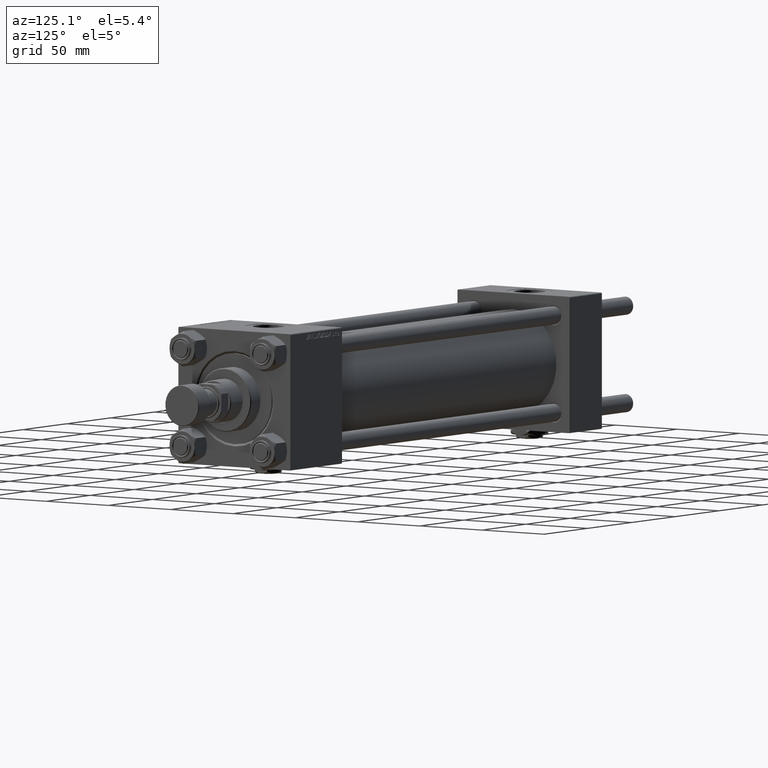
[diagram: clean part render]
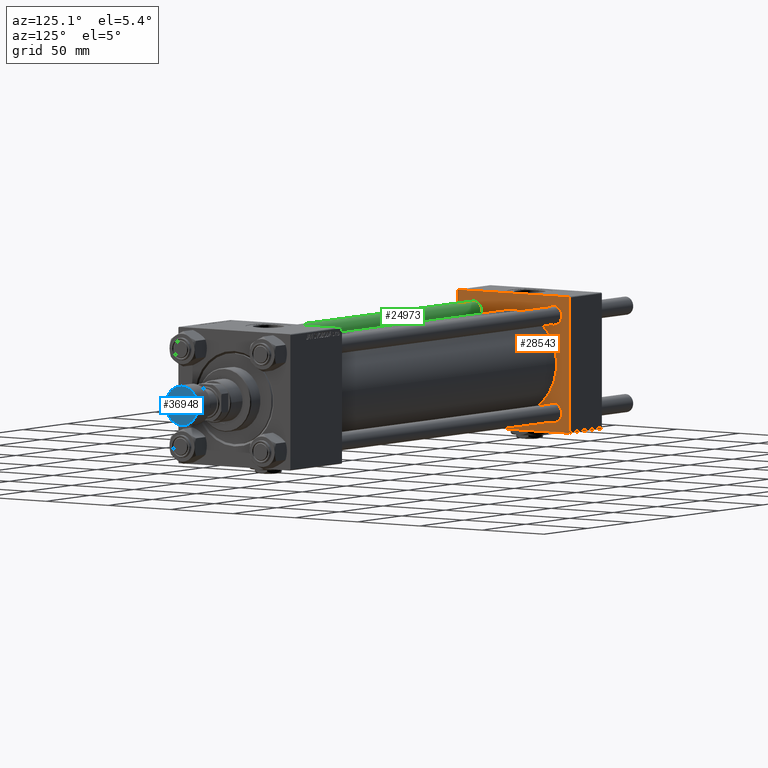
[diagram: same view with three faces highlighted in distinct colors, each labeled with its STEP entity id]
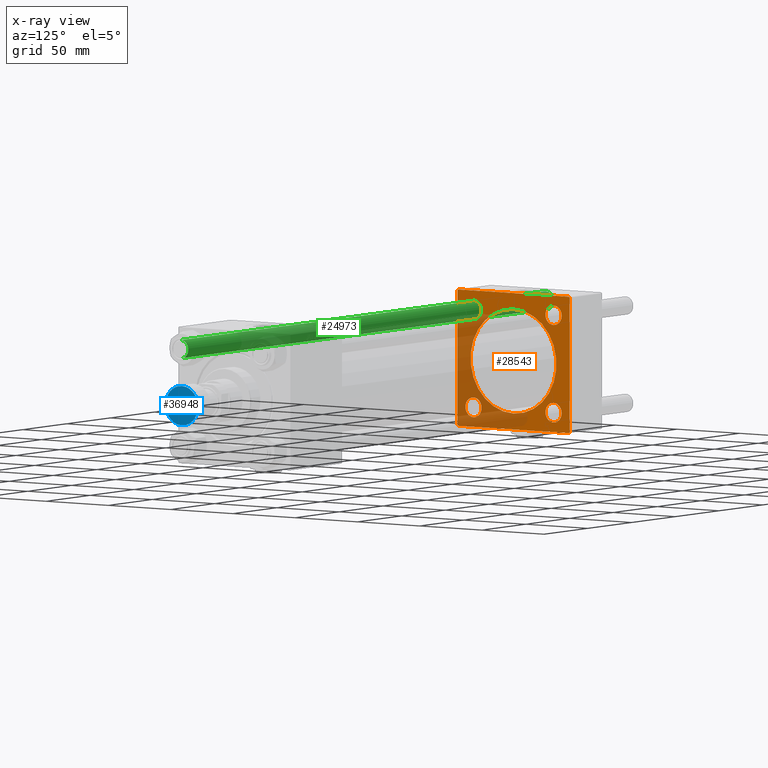
[diagram: x-ray of the same camera — body ghosted, the three highlighted faces saturated]
A machine part, auxiliary view with three faces highlighted in distinct colors.
The next image is the same camera in x-ray (body ghosted, the three faces saturated) — at least one of them is partly hidden behind the body in this view.
Their STEP definitions:

[orange] entity #28543 — the highlighted planar face has unit normal (-1, 0, 0).
#491 = DIRECTION ( 'NONE',  ( -1.000000000000000000, 0.000000000000000000, -0.000000000000000000 ) ) ;
#596 = VECTOR ( 'NONE', #25896, 1000.000000000000114 ) ;
#1404 = CARTESIAN_POINT ( 'NONE',  ( 37.00000000000000000, -45.00000000000000711, 44.49999999999997158 ) ) ;
#1483 = CARTESIAN_POINT ( 'NONE',  ( 37.00000000000000000, 32.14999999999999147, -25.65000000000005542 ) ) ;
#1545 = CARTESIAN_POINT ( 'NONE',  ( 37.00000000000000000, 32.14999999999999147, 38.64999999999995595 ) ) ;
#1889 = DIRECTION ( 'NONE',  ( -1.000000000000000000, 0.000000000000000000, -0.000000000000000000 ) ) ;
#1951 = VECTOR ( 'NONE', #28713, 1000.000000000000000 ) ;
#2550 = VERTEX_POINT ( 'NONE', #1545 ) ;
#3356 = EDGE_CURVE ( 'NONE', #46774, #48983, #51695, .T. ) ;
#3437 = AXIS2_PLACEMENT_3D ( 'NONE', #50021, #33618, #5835 ) ;
#3472 = DIRECTION ( 'NONE',  ( -1.000000000000000000, 0.000000000000000000, -0.000000000000000000 ) ) ;
#3744 = CARTESIAN_POINT ( 'NONE',  ( 37.00000000000000000, 44.99999999999998579, 45.00000000000001421 ) ) ;
#3995 = ORIENTED_EDGE ( 'NONE', *, *, #32920, .T. ) ;
#4193 = CARTESIAN_POINT ( 'NONE',  ( 37.00000000000000000, -32.14999999999997726, 32.15000000000001279 ) ) ;
#4603 = CIRCLE ( 'NONE', #39246, 6.499999999999950262 ) ;
#4772 = CARTESIAN_POINT ( 'NONE',  ( 36.99999999999997868, 0.000000000000000000, 0.000000000000000000 ) ) ;
#5323 = CIRCLE ( 'NONE', #7026, 6.499999999999950262 ) ;
#5688 = EDGE_CURVE ( 'NONE', #2550, #17032, #30655, .T. ) ;
#5790 = FACE_BOUND ( 'NONE', #16876, .T. ) ;
#5803 = EDGE_CURVE ( 'NONE', #40304, #42828, #5323, .T. ) ;
#5835 = DIRECTION ( 'NONE',  ( 0.000000000000000000, 0.000000000000000000, 1.000000000000000000 ) ) ;
#6051 = FACE_BOUND ( 'NONE', #24080, .T. ) ;
#6283 = ORIENTED_EDGE ( 'NONE', *, *, #46850, .T. ) ;
#6681 = CARTESIAN_POINT ( 'NONE',  ( 37.00000000000000000, -44.49999999999995737, -45.00000000000000000 ) ) ;
#6689 = CARTESIAN_POINT ( 'NONE',  ( 36.99999999999997868, 4.225031457058367344E-15, -34.49999999999999289 ) ) ;
#6837 = CARTESIAN_POINT ( 'NONE',  ( 36.99999999999997868, 0.000000000000000000, 34.49999999999999289 ) ) ;
#6917 = DIRECTION ( 'NONE',  ( 0.000000000000000000, 0.000000000000000000, 1.000000000000000000 ) ) ;
#7026 = AXIS2_PLACEMENT_3D ( 'NONE', #4193, #491, #28509 ) ;
#7093 = DIRECTION ( 'NONE',  ( 0.000000000000000000, 0.000000000000000000, 1.000000000000000000 ) ) ;
#7585 = CARTESIAN_POINT ( 'NONE',  ( 37.00000000000000000, 44.49999999999998579, 45.00000000000001421 ) ) ;
#7643 = CIRCLE ( 'NONE', #37223, 6.499999999999950262 ) ;
#7700 = VERTEX_POINT ( 'NONE', #1483 ) ;
#7859 = VECTOR ( 'NONE', #31920, 1000.000000000000114 ) ;
#8024 = CARTESIAN_POINT ( 'NONE',  ( 37.00000000000000000, 32.14999999999999147, 32.15000000000000568 ) ) ;
#8473 = DIRECTION ( 'NONE',  ( 1.000000000000000000, -0.000000000000000000, 0.000000000000000000 ) ) ;
#8658 = EDGE_CURVE ( 'NONE', #49926, #28106, #43831, .T. ) ;
#9208 = CARTESIAN_POINT ( 'NONE',  ( 37.00000000000000000, 44.49999999999998579, -44.99999999999998579 ) ) ;
#9772 = CARTESIAN_POINT ( 'NONE',  ( 37.00000000000000000, -44.49999999999998579, -45.00000000000000000 ) ) ;
#10048 = ORIENTED_EDGE ( 'NONE', *, *, #38626, .T. ) ;
#10142 = AXIS2_PLACEMENT_3D ( 'NONE', #4772, #8473, #16405 ) ;
#10172 = VECTOR ( 'NONE', #11133, 1000.000000000000114 ) ;
#10276 = LINE ( 'NONE', #47302, #29466 ) ;
#10550 = DIRECTION ( 'NONE',  ( 0.000000000000000000, 0.000000000000000000, 1.000000000000000000 ) ) ;
#10801 = FACE_BOUND ( 'NONE', #30455, .T. ) ;
#10857 = CARTESIAN_POINT ( 'NONE',  ( 37.00000000000000000, -32.14999999999997726, 32.15000000000001279 ) ) ;
#10979 = CARTESIAN_POINT ( 'NONE',  ( 37.00000000000000000, 32.14999999999999147, 25.65000000000005542 ) ) ;
#11119 = EDGE_CURVE ( 'NONE', #24620, #28545, #17204, .T. ) ;
#11133 = DIRECTION ( 'NONE',  ( -0.000000000000000000, -0.7071067811865425767, -0.7071067811865524577 ) ) ;
#11435 = VERTEX_POINT ( 'NONE', #12599 ) ;
#12599 = CARTESIAN_POINT ( 'NONE',  ( 37.00000000000000000, 32.14999999999999147, -38.64999999999995595 ) ) ;
#12900 = AXIS2_PLACEMENT_3D ( 'NONE', #42842, #26945, #15049 ) ;
#13198 = EDGE_CURVE ( 'NONE', #48983, #46774, #13885, .T. ) ;
#13325 = EDGE_CURVE ( 'NONE', #17032, #2550, #4603, .T. ) ;
#13885 = CIRCLE ( 'NONE', #46851, 6.499999999999950262 ) ;
#14263 = CARTESIAN_POINT ( 'NONE',  ( 37.00000000000000000, -32.14999999999997726, 25.65000000000006253 ) ) ;
#14771 = FACE_OUTER_BOUND ( 'NONE', #27775, .T. ) ;
#15049 = DIRECTION ( 'NONE',  ( 0.000000000000000000, 0.000000000000000000, 1.000000000000000000 ) ) ;
#15755 = CARTESIAN_POINT ( 'NONE',  ( 37.00000000000000000, -44.49999999999995737, 45.00000000000000000 ) ) ;
#16026 = AXIS2_PLACEMENT_3D ( 'NONE', #10857, #1889, #30441 ) ;
#16094 = ORIENTED_EDGE ( 'NONE', *, *, #44871, .F. ) ;
#16405 = DIRECTION ( 'NONE',  ( 0.000000000000000000, 0.000000000000000000, 1.000000000000000000 ) ) ;
#16876 = EDGE_LOOP ( 'NONE', ( #22390, #49203 ) ) ;
#17032 = VERTEX_POINT ( 'NONE', #10979 ) ;
#17070 = CARTESIAN_POINT ( 'NONE',  ( 37.00000000000000000, 44.99999999999998579, -44.99999999999998579 ) ) ;
#17121 = ORIENTED_EDGE ( 'NONE', *, *, #26921, .T. ) ;
#17204 = CIRCLE ( 'NONE', #34961, 34.49999999999999289 ) ;
#17568 = ORIENTED_EDGE ( 'NONE', *, *, #43378, .T. ) ;
#19856 = VERTEX_POINT ( 'NONE', #7585 ) ;
#19858 = DIRECTION ( 'NONE',  ( 0.000000000000000000, 0.000000000000000000, -1.000000000000000000 ) ) ;
#20196 = CARTESIAN_POINT ( 'NONE',  ( 37.00000000000000000, -32.14999999999997726, -38.64999999999996305 ) ) ;
#20303 = CARTESIAN_POINT ( 'NONE',  ( 37.00000000000000000, 44.99999999999998579, -44.49999999999995737 ) ) ;
#20397 = CARTESIAN_POINT ( 'NONE',  ( 36.99999999999997868, 0.000000000000000000, 0.000000000000000000 ) ) ;
#21174 = VERTEX_POINT ( 'NONE', #6681 ) ;
#21869 = CARTESIAN_POINT ( 'NONE',  ( 37.00000000000000000, -45.00000000000000000, -44.49999999999995737 ) ) ;
#22121 = VECTOR ( 'NONE', #24152, 1000.000000000000114 ) ;
#22173 = PLANE ( 'NONE',  #39535 ) ;
#22390 = ORIENTED_EDGE ( 'NONE', *, *, #3356, .T. ) ;
#22983 = ORIENTED_EDGE ( 'NONE', *, *, #45515, .F. ) ;
#23602 = CIRCLE ( 'NONE', #16026, 6.499999999999950262 ) ;
#23913 = DIRECTION ( 'NONE',  ( 0.000000000000000000, -1.000000000000000000, -1.541976423090495387E-16 ) ) ;
#24076 = CARTESIAN_POINT ( 'NONE',  ( 37.00000000000000000, -45.00000000000000711, 44.49999999999997158 ) ) ;
#24080 = EDGE_LOOP ( 'NONE', ( #29376, #32470 ) ) ;
#24152 = DIRECTION ( 'NONE',  ( 0.000000000000000000, -0.7071067811865474617, 0.7071067811865474617 ) ) ;
#24620 = VERTEX_POINT ( 'NONE', #6689 ) ;
#25608 = VECTOR ( 'NONE', #19858, 1000.000000000000000 ) ;
#25737 = ORIENTED_EDGE ( 'NONE', *, *, #34660, .F. ) ;
#25896 = DIRECTION ( 'NONE',  ( 0.000000000000000000, 0.7071067811865474617, -0.7071067811865474617 ) ) ;
#26510 = VERTEX_POINT ( 'NONE', #15755 ) ;
#26674 = CARTESIAN_POINT ( 'NONE',  ( 37.00000000000000000, 32.14999999999999147, -32.15000000000000568 ) ) ;
#26921 = EDGE_CURVE ( 'NONE', #39779, #21174, #46016, .T. ) ;
#26945 = DIRECTION ( 'NONE',  ( -1.000000000000000000, 0.000000000000000000, -0.000000000000000000 ) ) ;
#27187 = CARTESIAN_POINT ( 'NONE',  ( 37.00000000000000000, -32.14999999999997726, -32.15000000000001279 ) ) ;
#27522 = CARTESIAN_POINT ( 'NONE',  ( 37.00000000000000000, 44.99999999999998579, 44.50000000000001421 ) ) ;
#27775 = EDGE_LOOP ( 'NONE', ( #22983, #40421, #16094, #17568, #6283, #39021, #39261, #17121 ) ) ;
#27939 = CARTESIAN_POINT ( 'NONE',  ( 37.00000000000000000, 44.99999999999998579, -44.49999999999998579 ) ) ;
#28106 = VERTEX_POINT ( 'NONE', #20303 ) ;
#28377 = CARTESIAN_POINT ( 'NONE',  ( 37.00000000000000000, 44.49999999999998579, 45.00000000000001421 ) ) ;
#28509 = DIRECTION ( 'NONE',  ( 0.000000000000000000, 0.000000000000000000, 1.000000000000000000 ) ) ;
#28543 = ADVANCED_FACE ( 'NONE', ( #5790, #51014, #42302, #6051, #10801, #14771 ), #22173, .F. ) ;
#28545 = VERTEX_POINT ( 'NONE', #6837 ) ;
#28713 = DIRECTION ( 'NONE',  ( 0.000000000000000000, -1.000000000000000000, -1.541976423090495633E-16 ) ) ;
#29114 = CARTESIAN_POINT ( 'NONE',  ( 37.00000000000000000, -32.14999999999997726, 38.64999999999996305 ) ) ;
#29376 = ORIENTED_EDGE ( 'NONE', *, *, #13325, .T. ) ;
#29466 = VECTOR ( 'NONE', #38600, 1000.000000000000000 ) ;
#30441 = DIRECTION ( 'NONE',  ( 0.000000000000000000, 0.000000000000000000, 1.000000000000000000 ) ) ;
#30455 = EDGE_LOOP ( 'NONE', ( #25737, #31794 ) ) ;
#30655 = CIRCLE ( 'NONE', #12900, 6.499999999999950262 ) ;
#30906 = CARTESIAN_POINT ( 'NONE',  ( 37.00000000000000000, 0.000000000000000000, 0.000000000000000000 ) ) ;
#31690 = DIRECTION ( 'NONE',  ( -1.000000000000000000, 0.000000000000000000, -0.000000000000000000 ) ) ;
#31794 = ORIENTED_EDGE ( 'NONE', *, *, #11119, .F. ) ;
#31911 = EDGE_CURVE ( 'NONE', #44499, #39779, #10276, .T. ) ;
#31920 = DIRECTION ( 'NONE',  ( -0.000000000000000000, 0.7071067811865474617, 0.7071067811865474617 ) ) ;
#32470 = ORIENTED_EDGE ( 'NONE', *, *, #5688, .T. ) ;
#32604 = DIRECTION ( 'NONE',  ( 0.000000000000000000, 0.000000000000000000, 1.000000000000000000 ) ) ;
#32920 = EDGE_CURVE ( 'NONE', #42828, #40304, #23602, .T. ) ;
#33618 = DIRECTION ( 'NONE',  ( -1.000000000000000000, 0.000000000000000000, -0.000000000000000000 ) ) ;
#34356 = DIRECTION ( 'NONE',  ( -0.000000000000000000, 0.000000000000000000, 1.000000000000000000 ) ) ;
#34660 = EDGE_CURVE ( 'NONE', #28545, #24620, #35476, .T. ) ;
#34961 = AXIS2_PLACEMENT_3D ( 'NONE', #20397, #36827, #41767 ) ;
#35310 = LINE ( 'NONE', #52226, #38834 ) ;
#35436 = ORIENTED_EDGE ( 'NONE', *, *, #50354, .T. ) ;
#35476 = CIRCLE ( 'NONE', #10142, 34.49999999999999289 ) ;
#36827 = DIRECTION ( 'NONE',  ( 1.000000000000000000, -0.000000000000000000, 0.000000000000000000 ) ) ;
#37223 = AXIS2_PLACEMENT_3D ( 'NONE', #26674, #46802, #10550 ) ;
#37354 = AXIS2_PLACEMENT_3D ( 'NONE', #38684, #3472, #6917 ) ;
#37461 = LINE ( 'NONE', #17070, #1951 ) ;
#38496 = EDGE_CURVE ( 'NONE', #26510, #44499, #43410, .T. ) ;
#38600 = DIRECTION ( 'NONE',  ( 0.000000000000000000, 7.709882115452476934E-17, -1.000000000000000000 ) ) ;
#38626 = EDGE_CURVE ( 'NONE', #11435, #7700, #7643, .T. ) ;
#38684 = CARTESIAN_POINT ( 'NONE',  ( 37.00000000000000000, -32.14999999999997726, -32.15000000000001279 ) ) ;
#38833 = ORIENTED_EDGE ( 'NONE', *, *, #5803, .T. ) ;
#38834 = VECTOR ( 'NONE', #23913, 1000.000000000000000 ) ;
#39021 = ORIENTED_EDGE ( 'NONE', *, *, #38496, .T. ) ;
#39246 = AXIS2_PLACEMENT_3D ( 'NONE', #8024, #40305, #32604 ) ;
#39261 = ORIENTED_EDGE ( 'NONE', *, *, #31911, .T. ) ;
#39445 = VERTEX_POINT ( 'NONE', #27522 ) ;
#39535 = AXIS2_PLACEMENT_3D ( 'NONE', #30906, #46528, #34356 ) ;
#39779 = VERTEX_POINT ( 'NONE', #21869 ) ;
#40054 = LINE ( 'NONE', #28377, #22121 ) ;
#40304 = VERTEX_POINT ( 'NONE', #29114 ) ;
#40305 = DIRECTION ( 'NONE',  ( -1.000000000000000000, 0.000000000000000000, -0.000000000000000000 ) ) ;
#40421 = ORIENTED_EDGE ( 'NONE', *, *, #8658, .T. ) ;
#41767 = DIRECTION ( 'NONE',  ( 0.000000000000000000, 0.000000000000000000, 1.000000000000000000 ) ) ;
#42302 = FACE_BOUND ( 'NONE', #46266, .T. ) ;
#42828 = VERTEX_POINT ( 'NONE', #14263 ) ;
#42842 = CARTESIAN_POINT ( 'NONE',  ( 37.00000000000000000, 32.14999999999999147, 32.15000000000000568 ) ) ;
#43378 = EDGE_CURVE ( 'NONE', #39445, #19856, #40054, .T. ) ;
#43410 = LINE ( 'NONE', #24076, #10172 ) ;
#43831 = LINE ( 'NONE', #27939, #7859 ) ;
#44499 = VERTEX_POINT ( 'NONE', #1404 ) ;
#44871 = EDGE_CURVE ( 'NONE', #39445, #28106, #47916, .T. ) ;
#45515 = EDGE_CURVE ( 'NONE', #49926, #21174, #37461, .T. ) ;
#46016 = LINE ( 'NONE', #9772, #596 ) ;
#46266 = EDGE_LOOP ( 'NONE', ( #3995, #38833 ) ) ;
#46425 = CARTESIAN_POINT ( 'NONE',  ( 37.00000000000000000, -32.14999999999997726, -25.65000000000006253 ) ) ;
#46524 = CIRCLE ( 'NONE', #3437, 6.499999999999950262 ) ;
#46528 = DIRECTION ( 'NONE',  ( -1.000000000000000000, 0.000000000000000000, -0.000000000000000000 ) ) ;
#46774 = VERTEX_POINT ( 'NONE', #20196 ) ;
#46802 = DIRECTION ( 'NONE',  ( -1.000000000000000000, 0.000000000000000000, -0.000000000000000000 ) ) ;
#46850 = EDGE_CURVE ( 'NONE', #19856, #26510, #35310, .T. ) ;
#46851 = AXIS2_PLACEMENT_3D ( 'NONE', #27187, #31690, #7093 ) ;
#47302 = CARTESIAN_POINT ( 'NONE',  ( 37.00000000000000000, -45.00000000000000711, 45.00000000000000000 ) ) ;
#47916 = LINE ( 'NONE', #3744, #25608 ) ;
#48787 = EDGE_LOOP ( 'NONE', ( #10048, #35436 ) ) ;
#48983 = VERTEX_POINT ( 'NONE', #46425 ) ;
#49203 = ORIENTED_EDGE ( 'NONE', *, *, #13198, .T. ) ;
#49926 = VERTEX_POINT ( 'NONE', #9208 ) ;
#50021 = CARTESIAN_POINT ( 'NONE',  ( 37.00000000000000000, 32.14999999999999147, -32.15000000000000568 ) ) ;
#50354 = EDGE_CURVE ( 'NONE', #7700, #11435, #46524, .T. ) ;
#51014 = FACE_BOUND ( 'NONE', #48787, .T. ) ;
#51695 = CIRCLE ( 'NONE', #37354, 6.499999999999950262 ) ;
#52226 = CARTESIAN_POINT ( 'NONE',  ( 37.00000000000000000, 44.99999999999998579, 45.00000000000001421 ) ) ;

[blue] entity #36948 — the highlighted planar face has unit normal (1, 0, 0).
#2026 = CARTESIAN_POINT ( 'NONE',  ( 0.000000000000000000, 0.000000000000000000, 0.000000000000000000 ) ) ;
#6760 = FACE_OUTER_BOUND ( 'NONE', #32150, .T. ) ;
#7608 = AXIS2_PLACEMENT_3D ( 'NONE', #2026, #14441, #34283 ) ;
#10763 = DIRECTION ( 'NONE',  ( 1.000000000000000000, 0.000000000000000000, 0.000000000000000000 ) ) ;
#10808 = EDGE_CURVE ( 'NONE', #29311, #14018, #37499, .T. ) ;
#14018 = VERTEX_POINT ( 'NONE', #38495 ) ;
#14441 = DIRECTION ( 'NONE',  ( 0.000000000000000000, 0.000000000000000000, 1.000000000000000000 ) ) ;
#17327 = ORIENTED_EDGE ( 'NONE', *, *, #36144, .T. ) ;
#22048 = CARTESIAN_POINT ( 'NONE',  ( -13.00000000000000000, 1.622657008870242882E-15, 0.000000000000000000 ) ) ;
#22886 = PLANE ( 'NONE',  #7608 ) ;
#24433 = DIRECTION ( 'NONE',  ( 0.000000000000000000, 0.000000000000000000, 1.000000000000000000 ) ) ;
#29311 = VERTEX_POINT ( 'NONE', #22048 ) ;
#30866 = CARTESIAN_POINT ( 'NONE',  ( 0.000000000000000000, 0.000000000000000000, 0.000000000000000000 ) ) ;
#32150 = EDGE_LOOP ( 'NONE', ( #17327, #51634 ) ) ;
#32403 = AXIS2_PLACEMENT_3D ( 'NONE', #49306, #24433, #32903 ) ;
#32903 = DIRECTION ( 'NONE',  ( 1.000000000000000000, 0.000000000000000000, 0.000000000000000000 ) ) ;
#33741 = AXIS2_PLACEMENT_3D ( 'NONE', #30866, #47012, #10763 ) ;
#34283 = DIRECTION ( 'NONE',  ( 1.000000000000000000, 0.000000000000000000, -0.000000000000000000 ) ) ;
#36144 = EDGE_CURVE ( 'NONE', #14018, #29311, #51485, .T. ) ;
#36948 = ADVANCED_FACE ( 'NONE', ( #6760 ), #22886, .T. ) ;
#37499 = CIRCLE ( 'NONE', #32403, 13.00000000000000000 ) ;
#38495 = CARTESIAN_POINT ( 'NONE',  ( 13.00000000000000000, 0.000000000000000000, 0.000000000000000000 ) ) ;
#47012 = DIRECTION ( 'NONE',  ( 0.000000000000000000, 0.000000000000000000, 1.000000000000000000 ) ) ;
#49306 = CARTESIAN_POINT ( 'NONE',  ( 0.000000000000000000, 0.000000000000000000, 0.000000000000000000 ) ) ;
#51485 = CIRCLE ( 'NONE', #33741, 13.00000000000000000 ) ;
#51634 = ORIENTED_EDGE ( 'NONE', *, *, #10808, .T. ) ;

[green] entity #24973 — the highlighted cylindrical surface (edge-blend (fillet) strip) has radius 6 mm, axis along (1, -0, 0).
#2144 = CYLINDRICAL_SURFACE ( 'NONE', #8935, 6.000000000000000888 ) ;
#4851 = VERTEX_POINT ( 'NONE', #10252 ) ;
#5589 = DIRECTION ( 'NONE',  ( -1.000000000000000000, 0.000000000000000000, 0.000000000000000000 ) ) ;
#5721 = DIRECTION ( 'NONE',  ( 1.000000000000000000, 0.000000000000000000, 0.000000000000000000 ) ) ;
#8935 = AXIS2_PLACEMENT_3D ( 'NONE', #18006, #30433, #5589 ) ;
#9947 = CARTESIAN_POINT ( 'NONE',  ( 0.000000000000000000, 0.000000000000000000, 417.5000000000000000 ) ) ;
#10252 = CARTESIAN_POINT ( 'NONE',  ( -6.000000000000000888, 0.000000000000000000, 417.5000000000000000 ) ) ;
#10676 = CIRCLE ( 'NONE', #30950, 6.000000000000000888 ) ;
#10962 = ORIENTED_EDGE ( 'NONE', *, *, #39801, .F. ) ;
#11592 = CARTESIAN_POINT ( 'NONE',  ( 6.000000000000000888, 7.347880794884120722E-16, 417.5000000000000000 ) ) ;
#12027 = CARTESIAN_POINT ( 'NONE',  ( 6.000000000000000888, 7.347880794884120722E-16, 0.5000000000000559552 ) ) ;
#12809 = CIRCLE ( 'NONE', #42390, 6.000000000000000888 ) ;
#13270 = CARTESIAN_POINT ( 'NONE',  ( 0.000000000000000000, 0.000000000000000000, 0.5000000000000559552 ) ) ;
#14439 = VECTOR ( 'NONE', #35362, 1000.000000000000000 ) ;
#16832 = DIRECTION ( 'NONE',  ( 0.000000000000000000, 0.000000000000000000, -1.000000000000000000 ) ) ;
#17499 = DIRECTION ( 'NONE',  ( -0.000000000000000000, -0.000000000000000000, 1.000000000000000000 ) ) ;
#17807 = EDGE_CURVE ( 'NONE', #34836, #4851, #10676, .T. ) ;
#18006 = CARTESIAN_POINT ( 'NONE',  ( 0.000000000000000000, 0.000000000000000000, 418.0000000000000000 ) ) ;
#20714 = ORIENTED_EDGE ( 'NONE', *, *, #42484, .T. ) ;
#21388 = CARTESIAN_POINT ( 'NONE',  ( -6.000000000000000888, 0.000000000000000000, 418.0000000000000000 ) ) ;
#21912 = DIRECTION ( 'NONE',  ( -0.000000000000000000, -0.000000000000000000, -1.000000000000000000 ) ) ;
#23549 = VERTEX_POINT ( 'NONE', #38972 ) ;
#24973 = ADVANCED_FACE ( 'NONE', ( #30176 ), #2144, .T. ) ;
#25847 = CARTESIAN_POINT ( 'NONE',  ( 6.000000000000000888, 7.347880794884120722E-16, 418.0000000000000000 ) ) ;
#29827 = LINE ( 'NONE', #25847, #14439 ) ;
#30176 = FACE_OUTER_BOUND ( 'NONE', #47708, .T. ) ;
#30433 = DIRECTION ( 'NONE',  ( -0.000000000000000000, -0.000000000000000000, -1.000000000000000000 ) ) ;
#30950 = AXIS2_PLACEMENT_3D ( 'NONE', #9947, #16832, #5721 ) ;
#32547 = ORIENTED_EDGE ( 'NONE', *, *, #17807, .T. ) ;
#34836 = VERTEX_POINT ( 'NONE', #11592 ) ;
#35362 = DIRECTION ( 'NONE',  ( -0.000000000000000000, -0.000000000000000000, -1.000000000000000000 ) ) ;
#37712 = EDGE_CURVE ( 'NONE', #4851, #23549, #38611, .T. ) ;
#38611 = LINE ( 'NONE', #21388, #41365 ) ;
#38972 = CARTESIAN_POINT ( 'NONE',  ( -6.000000000000000888, 0.000000000000000000, 0.5000000000000559552 ) ) ;
#39409 = ORIENTED_EDGE ( 'NONE', *, *, #37712, .T. ) ;
#39801 = EDGE_CURVE ( 'NONE', #34836, #47709, #29827, .T. ) ;
#41365 = VECTOR ( 'NONE', #21912, 1000.000000000000000 ) ;
#42390 = AXIS2_PLACEMENT_3D ( 'NONE', #13270, #17499, #49780 ) ;
#42484 = EDGE_CURVE ( 'NONE', #23549, #47709, #12809, .T. ) ;
#47708 = EDGE_LOOP ( 'NONE', ( #10962, #32547, #39409, #20714 ) ) ;
#47709 = VERTEX_POINT ( 'NONE', #12027 ) ;
#49780 = DIRECTION ( 'NONE',  ( 1.000000000000000000, 0.000000000000000000, 0.000000000000000000 ) ) ;